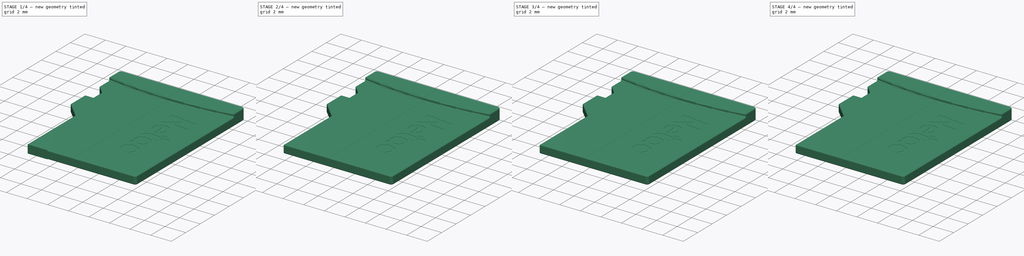
[diagram: build sequence overview — one tinted view per stage of 4, left to right]
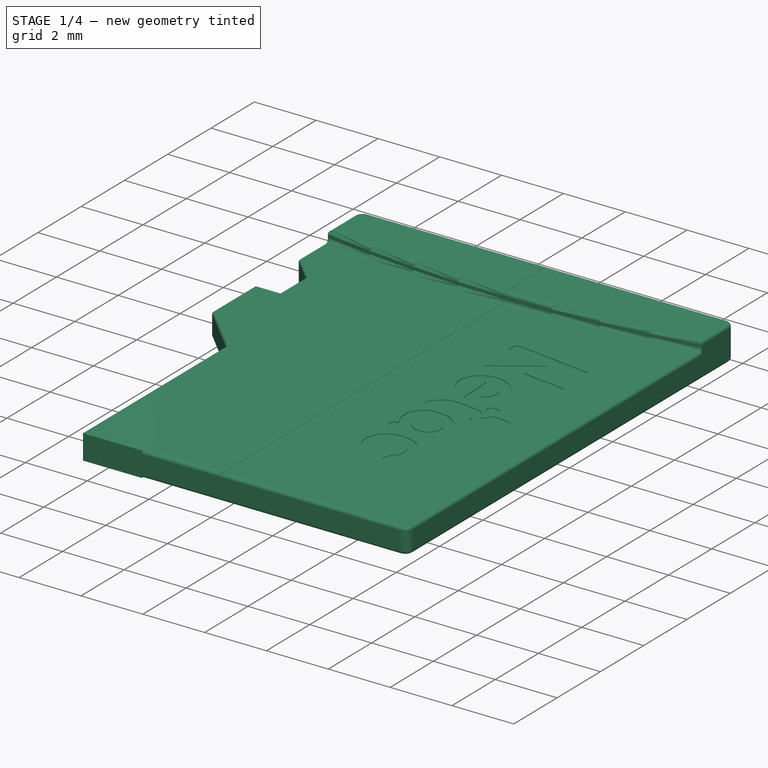
[diagram: stage 1 of 4 — iso view after this stage's code; geometry added in this stage tinted green]
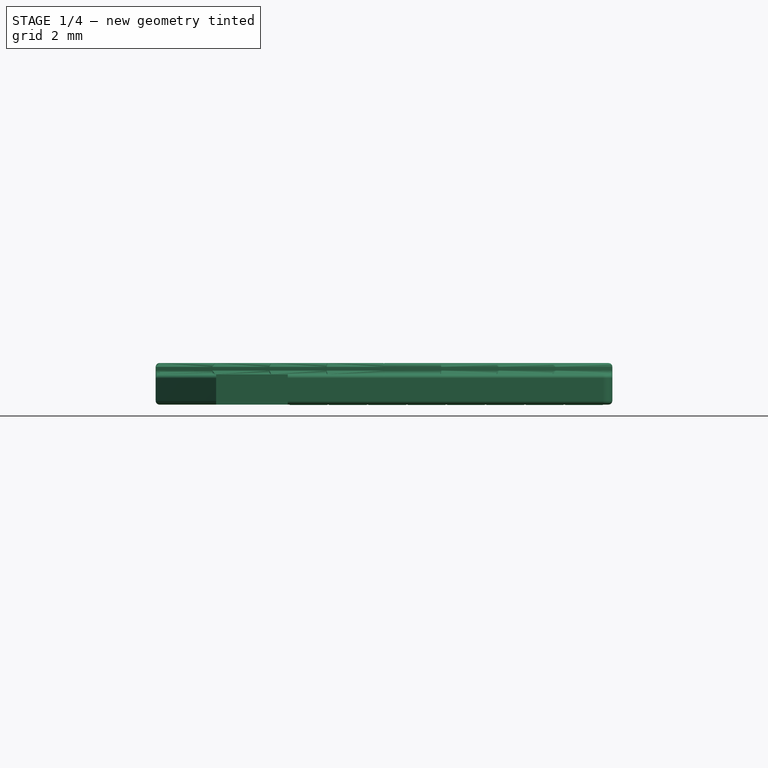
[diagram: stage 1 of 4 — front view after this stage's code; geometry added in this stage tinted green]
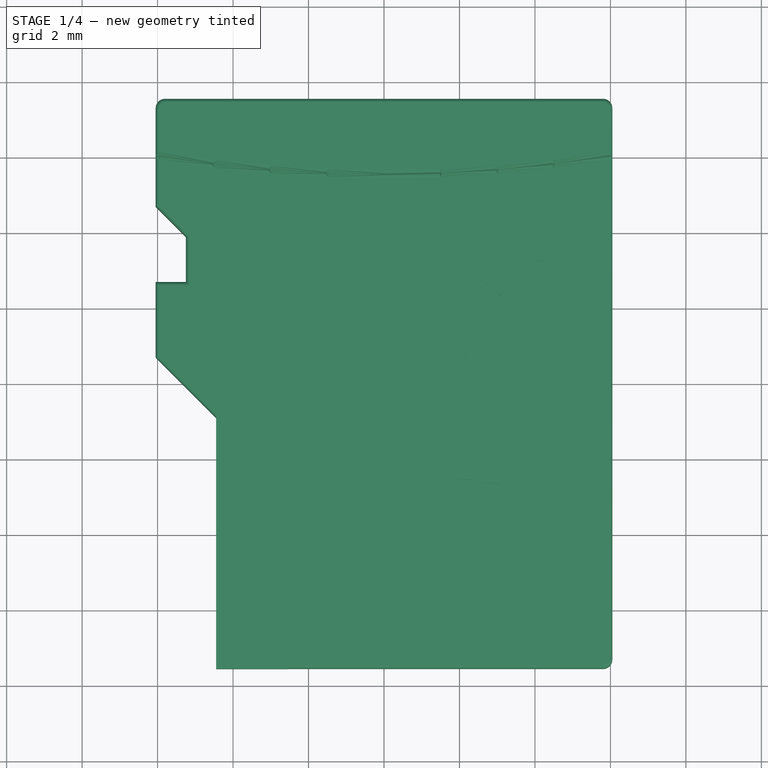
[diagram: stage 1 of 4 — top view after this stage's code; geometry added in this stage tinted green]
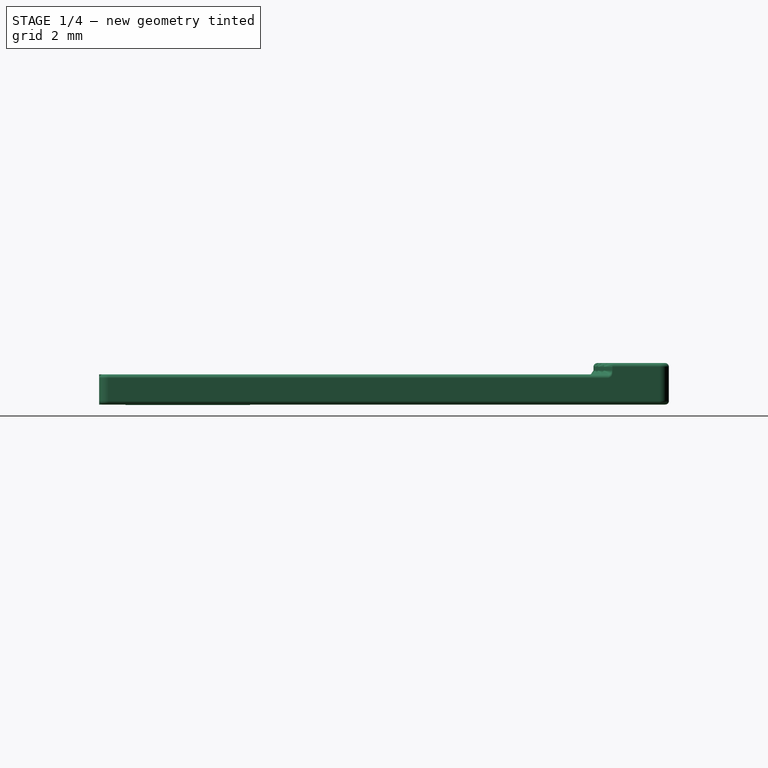
[diagram: stage 1 of 4 — right view after this stage's code; geometry added in this stage tinted green]
FCSTD DOCUMENT  (FreeCAD 0.19R)
Label: Netac 8GB
License: All rights reserved
LicenseURL: http://en.wikipedia.org/wiki/All_rights_reserved
objects: PartDesign::Pad×5, Sketcher::SketchObject×4, Part::Feature×2, PartDesign::SubtractivePipe×2, PartDesign::FeatureBase×1, PartDesign::Pocket×1, PartDesign::LinearPattern×1, PartDesign::Body×1
note: 25 computed .brp shape members not serialized (recipe doc carries the construction recipe); baked Part::Feature solids carry a one-line shape summary decoded from their .brp

FEATURE [Part::Feature] Compound001
  Placement = pos=(54.15,-1.2e-14,0) rot=(0,0,1;4.71239rad)
  shape: bbox 18.89 x 57.41 x 2e-07 mm, 19 faces, 0 solids (baked)
FEATURE [Part::Feature] Cut001
  shape: bbox 12.22 x 15.14 x 1.112 mm, 199 faces (baked)
FEATURE [PartDesign::FeatureBase] BaseFeature
  BaseFeature = -> Cut001
FEATURE [Sketcher::SketchObject] Sketch
  ExternalGeometry = -> [BaseFeature]
  FullyConstrained = true
  MapMode = 5
  Placement = pos=(0,0,0.8) rot=(0,0,1;0rad)
  Support = -> [BaseFeature]
  sketch-geometry (4):
    g0: LineSegment StartX=-4.45 StartY=-0.758579 StartZ=0 EndX=-2.55 EndY=-0.758579 EndZ=0
    g1: LineSegment StartX=-2.55 StartY=-0.758579 StartZ=0 EndX=-2.55 EndY=-7.55 EndZ=0
    g2: LineSegment StartX=-2.55 StartY=-7.55 StartZ=0 EndX=-4.45 EndY=-7.55 EndZ=0
    g3: LineSegment StartX=-4.45 StartY=-7.55 StartZ=0 EndX=-4.45 EndY=-0.758579 EndZ=0
  constraints (11):
    c: Coincident(g0,g1)
    c: Coincident(g1,g2)
    c: Coincident(g2,g3)
    c: Coincident(g3,g0)
    c: Horizontal(g0)
    c: Horizontal(g2)
    c: Vertical(g1)
    c: Vertical(g3)
    c: PointOnObject(g0,g-4)
    c: Coincident(g-3,g1)
    c: Distance(g-6,g3) = 1.6
FEATURE [PartDesign::Pad] Pad
  BaseFeature = -> BaseFeature
  Direction = (1,1,1)
  Length = 10
  Length2 = 100
  Profile = -> Sketch
  Type = 3
  UpToFace = -> BaseFeature [Face15]
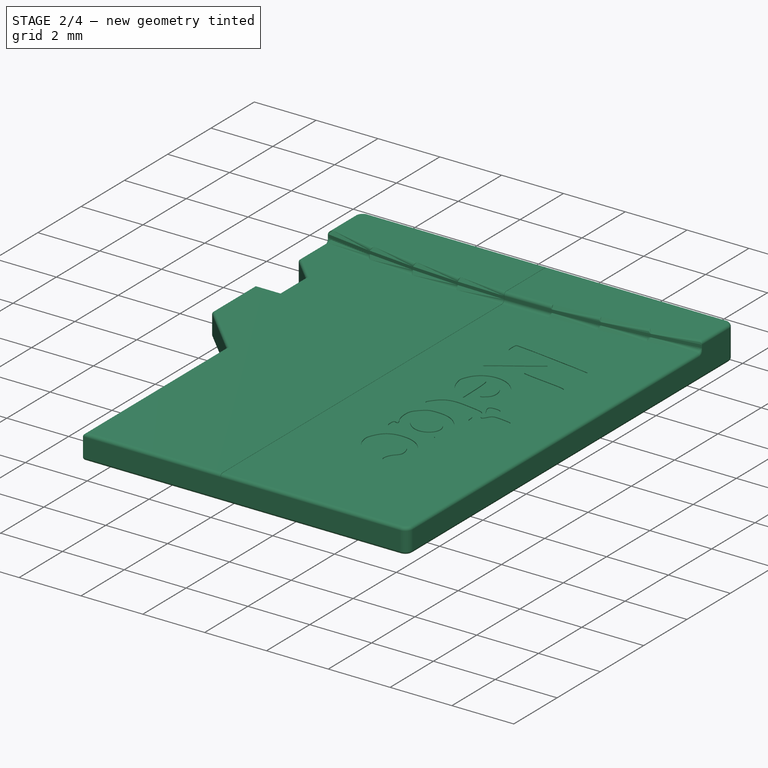
[diagram: stage 2 of 4 — iso view after this stage's code; geometry added in this stage tinted green]
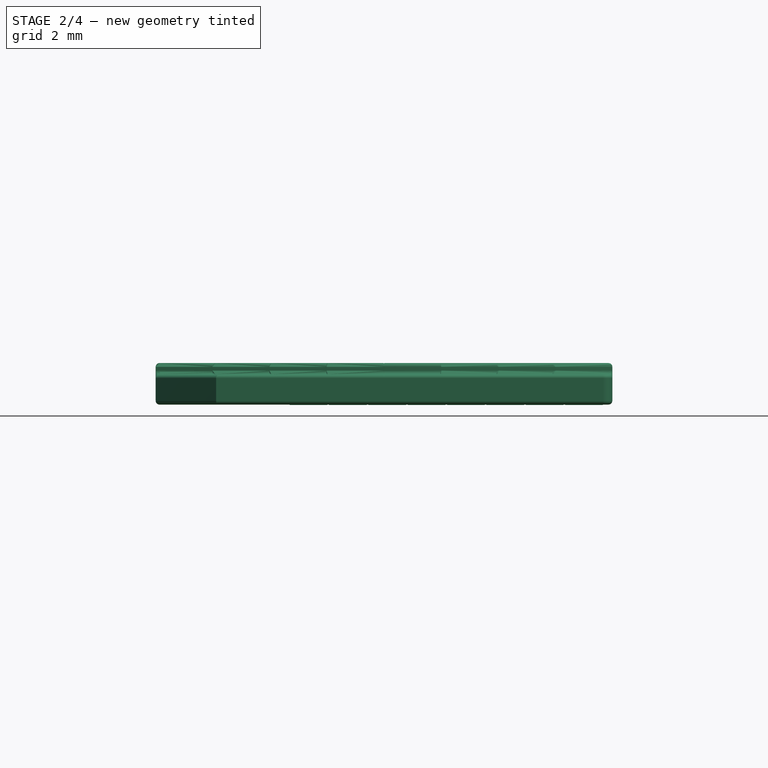
[diagram: stage 2 of 4 — front view after this stage's code; geometry added in this stage tinted green]
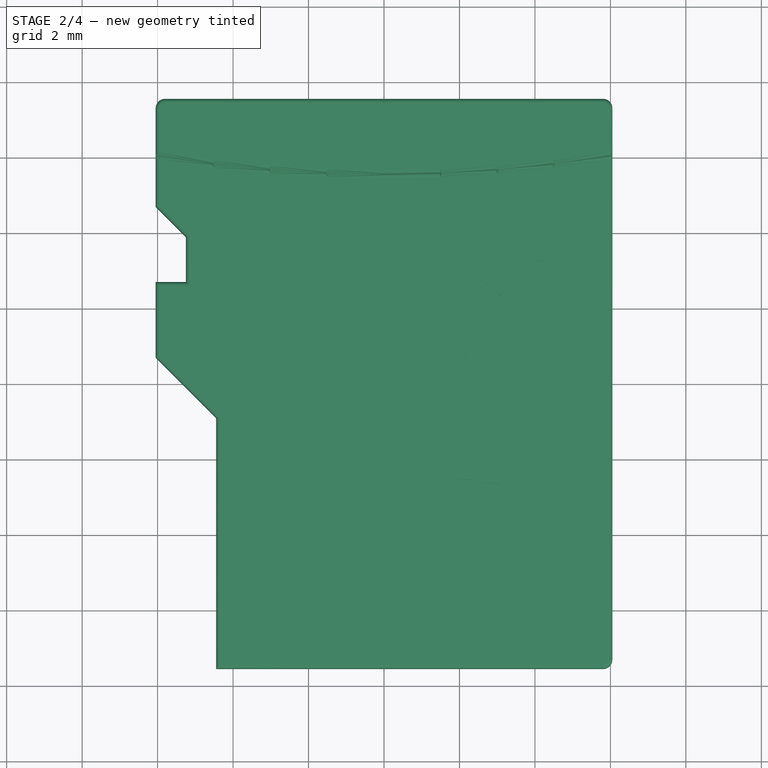
[diagram: stage 2 of 4 — top view after this stage's code; geometry added in this stage tinted green]
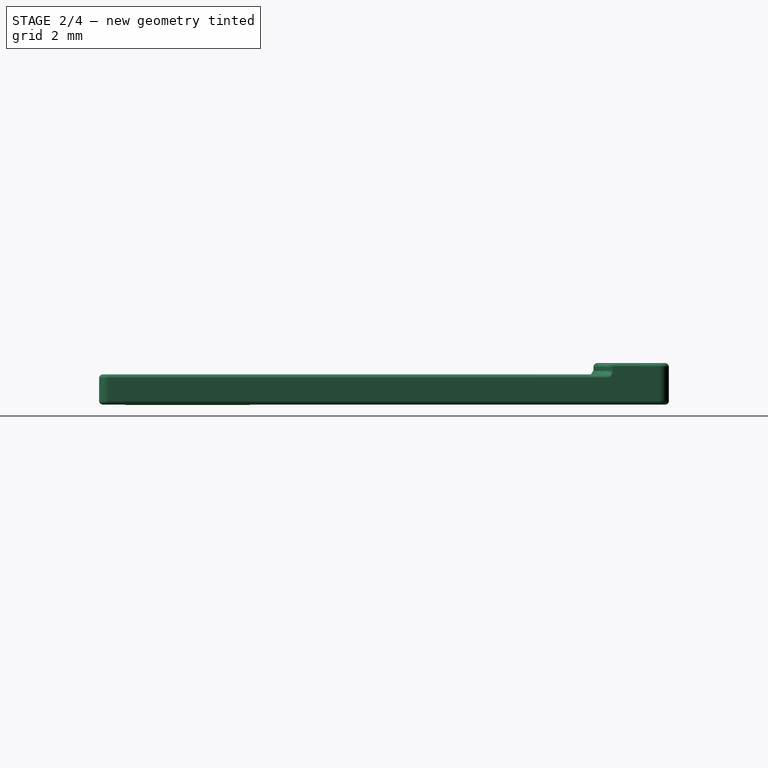
[diagram: stage 2 of 4 — right view after this stage's code; geometry added in this stage tinted green]
FEATURE [Sketcher::SketchObject] Sketch001
  ExternalGeometry = -> [Pad]
  FullyConstrained = true
  MapMode = 5
  Placement = pos=(0,0,0.8) rot=(0,0,1;0rad)
  Support = -> [Pad]
  sketch-geometry (4):
    g0: LineSegment StartX=-4.45 StartY=-0.9 StartZ=0 EndX=-4.45 EndY=-0.758579 EndZ=0
    g1: LineSegment StartX=-4.45 StartY=-0.758579 StartZ=0 EndX=-5.95 EndY=0.741421 EndZ=0
    g2: LineSegment StartX=-5.95 StartY=0.741421 StartZ=0 EndX=-6.05 EndY=0.7 EndZ=0
    g3: LineSegment StartX=-6.05 StartY=0.7 StartZ=0 EndX=-4.45 EndY=-0.9 EndZ=0
  constraints (9):
    c: Coincident(g0,g-4)
    c: Coincident(g0,g1)
    c: PointOnObject(g1,g-3)
    c: Coincident(g1,g2)
    c: Coincident(g2,g-3)
    c: Coincident(g2,g3)
    c: Coincident(g3,g0)
    c: Parallel(g3,g1)
    c: Coincident(g0,g-5)
FEATURE [PartDesign::Pad] Pad001
  BaseFeature = -> Pad
  Direction = (1,1,1)
  Length = 10
  Length2 = 100
  Profile = -> Sketch001
  Refine = true
  Type = 3
  UpToFace = -> Pad [Face3]
FEATURE [PartDesign::SubtractivePipe] SubtractivePipe
  AuxilleryCurvelinear = true
  AuxillerySpineTangent = false
  BaseFeature = -> Pad001
  Binormal = (0,0,0)
  Mode = 0
  Profile = -> Pad001 [Face45]
  Refine = true
  Spine = -> Pad001 [Edge466,Edge1,Edge458]
  SpineTangent = false
  Transformation = 0
  Transition = 2
FEATURE [PartDesign::SubtractivePipe] SubtractivePipe001
  AuxilleryCurvelinear = true
  AuxillerySpineTangent = false
  BaseFeature = -> SubtractivePipe
  Binormal = (0,0,0)
  Mode = 0
  Profile = -> SubtractivePipe [Face23]
  Spine = -> SubtractivePipe [Edge12,Edge3,Edge9]
  SpineTangent = false
  Transformation = 0
  Transition = 2
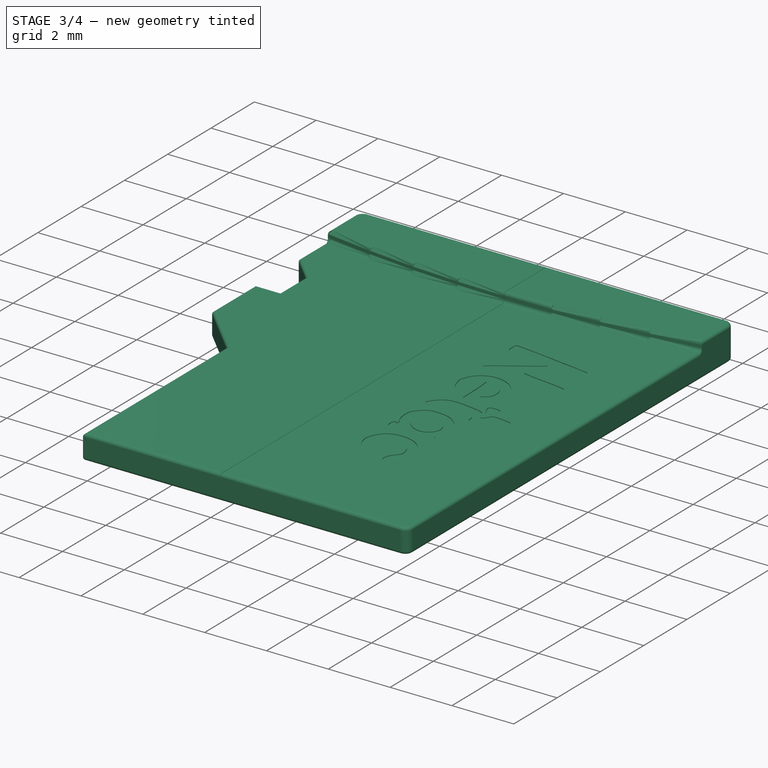
[diagram: stage 3 of 4 — iso view after this stage's code; geometry added in this stage tinted green]
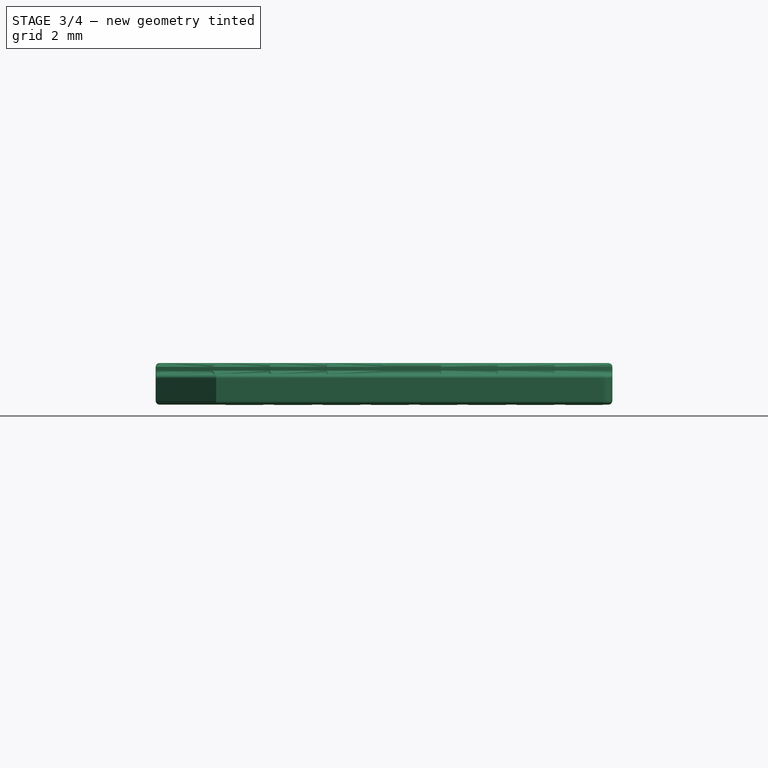
[diagram: stage 3 of 4 — front view after this stage's code; geometry added in this stage tinted green]
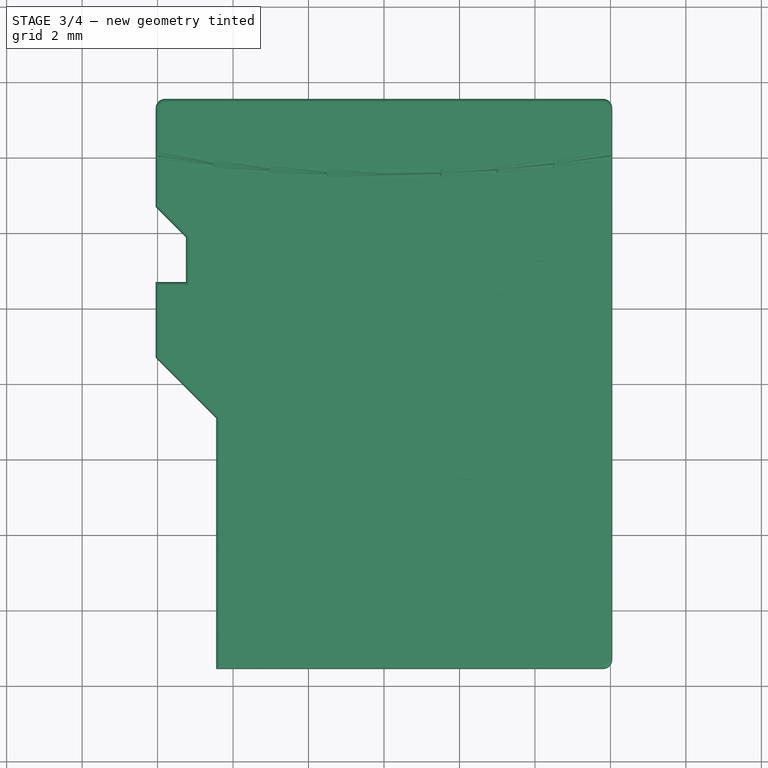
[diagram: stage 3 of 4 — top view after this stage's code; geometry added in this stage tinted green]
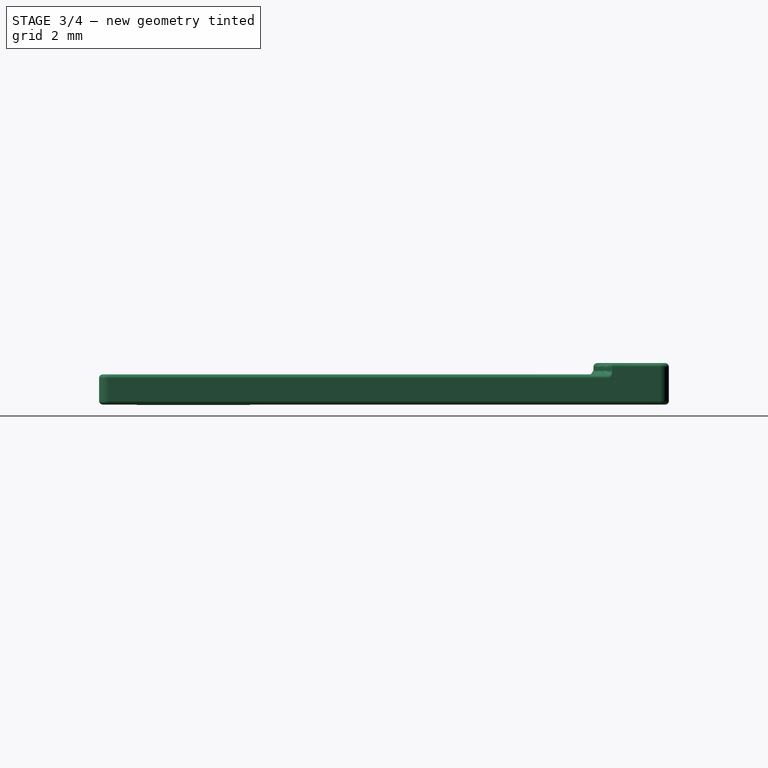
[diagram: stage 3 of 4 — right view after this stage's code; geometry added in this stage tinted green]
FEATURE [Sketcher::SketchObject] Sketch002
  ExternalGeometry = -> [SubtractivePipe001]
  FullyConstrained = true
  MapMode = 5
  Placement = pos=(0,0,0) rot=(1,0,0;3.14159rad)
  Support = -> [SubtractivePipe001]
  sketch-geometry (4):
    g0: LineSegment StartX=-2.5 StartY=3.55 StartZ=0 EndX=5.8 EndY=3.55 EndZ=0
    g1: LineSegment StartX=5.8 StartY=3.55 StartZ=0 EndX=5.8 EndY=6.85 EndZ=0
    g2: LineSegment StartX=5.8 StartY=6.85 StartZ=0 EndX=-2.5 EndY=6.85 EndZ=0
    g3: LineSegment StartX=-2.5 StartY=6.85 StartZ=0 EndX=-2.5 EndY=3.55 EndZ=0
  constraints (10):
    c: Coincident(g0,g1)
    c: Coincident(g1,g2)
    c: Coincident(g2,g3)
    c: Coincident(g3,g0)
    c: Horizontal(g2)
    c: Vertical(g1)
    c: Vertical(g3)
    c: Coincident(g0,g-4)
    c: PointOnObject(g-3,g2)
    c: Coincident(g0,g-5)
FEATURE [PartDesign::Pocket] Pocket
  BaseFeature = -> SubtractivePipe001
  Length = 5
  Length2 = 100
  Profile = -> Sketch002
  Reversed = true
  Type = 0
FEATURE [Sketcher::SketchObject] Sketch003
  ExternalGeometry = -> [Pocket]
  FullyConstrained = true
  MapMode = 5
  Placement = pos=(0,0,0) rot=(1,0,0;3.14159rad)
  Support = -> [Pocket]
  sketch-geometry (4):
    g0: LineSegment StartX=5.8 StartY=6.55 StartZ=0 EndX=4.8 EndY=6.55 EndZ=0
    g1: LineSegment StartX=4.8 StartY=6.55 StartZ=0 EndX=4.8 EndY=3.55 EndZ=0
    g2: LineSegment StartX=4.8 StartY=3.55 StartZ=0 EndX=5.8 EndY=3.55 EndZ=0
    g3: LineSegment StartX=5.8 StartY=3.55 StartZ=0 EndX=5.8 EndY=6.55 EndZ=0
  constraints (10):
    c: Coincident(g0,g1)
    c: Coincident(g1,g2)
    c: Coincident(g2,g3)
    c: Coincident(g3,g0)
    c: Horizontal(g0)
    c: Horizontal(g2)
    c: Vertical(g1)
    c: Vertical(g3)
    c: Coincident(g0,g-3)
    c: Coincident(g1,g-4)
FEATURE [PartDesign::Pad] Pad002
  BaseFeature = -> Pocket
  Direction = (1,1,1)
  Length = 0.01
  Length2 = 100
  Profile = -> Sketch003
  Refine = true
  Type = 0
FEATURE [PartDesign::LinearPattern] LinearPattern
  BaseFeature = -> Pad002
  Direction = -> X_Axis
  Length = 9
  Occurrences = 8
  Originals = -> [Pad002]
  Reversed = true
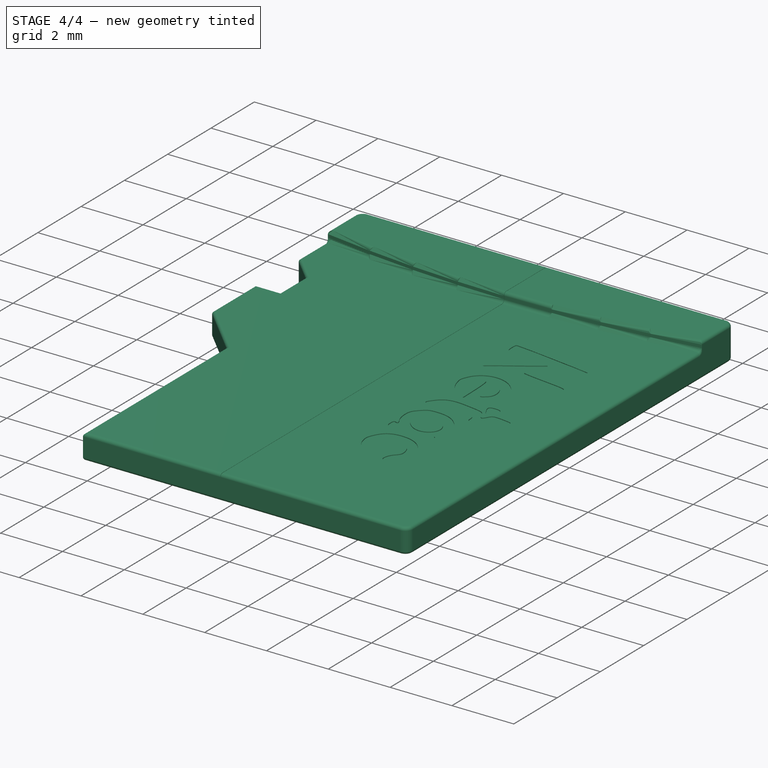
[diagram: stage 4 of 4 — iso view after this stage's code; geometry added in this stage tinted green]
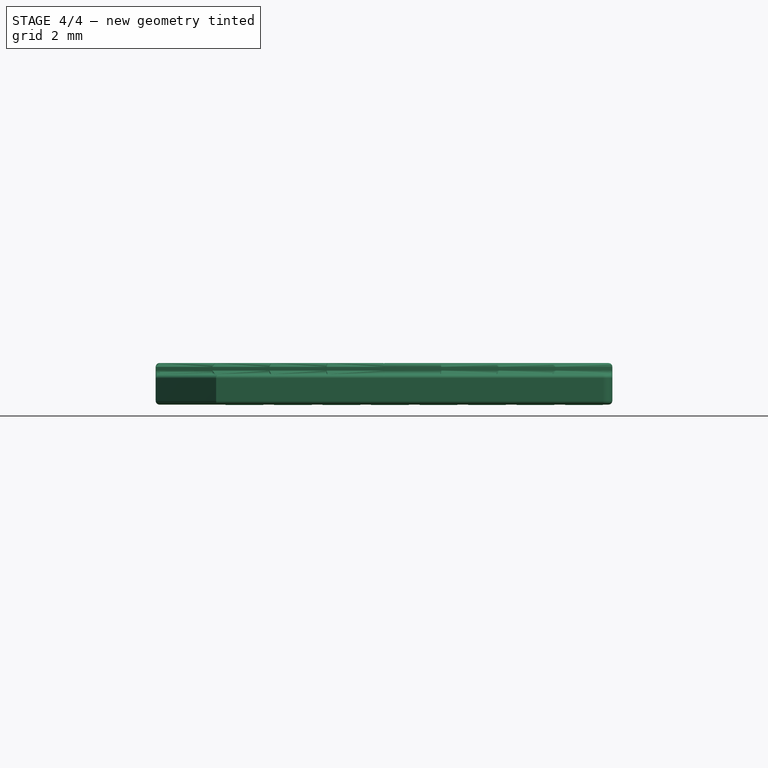
[diagram: stage 4 of 4 — front view after this stage's code; geometry added in this stage tinted green]
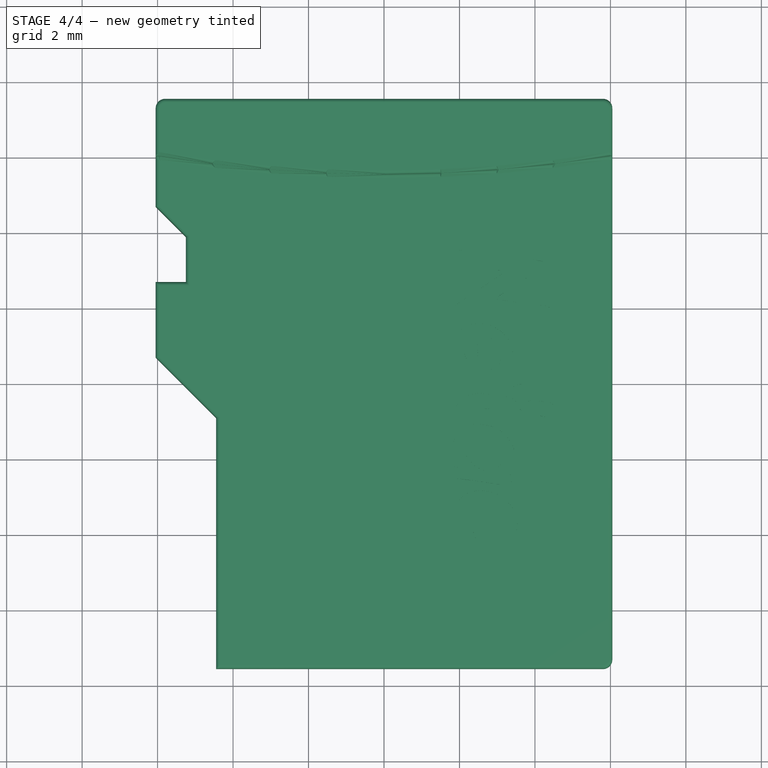
[diagram: stage 4 of 4 — top view after this stage's code; geometry added in this stage tinted green]
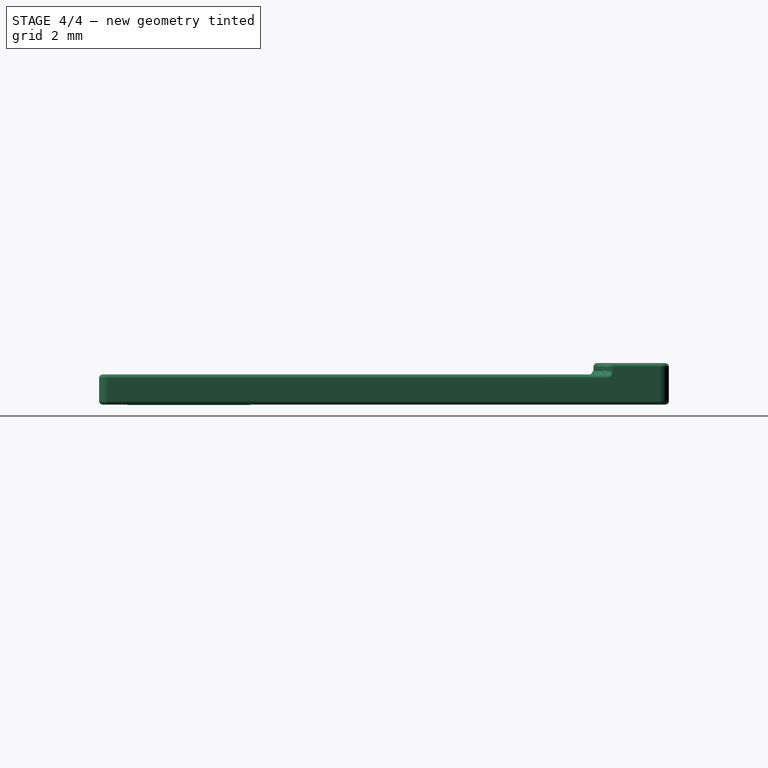
[diagram: stage 4 of 4 — right view after this stage's code; geometry added in this stage tinted green]
FEATURE [PartDesign::Pad] Pad003
  BaseFeature = -> LinearPattern
  Direction = (1,1,1)
  Length = 0.25
  Length2 = 100
  Profile = -> LinearPattern [Face47]
  Type = 0
FEATURE [PartDesign::Pad] Pad004
  BaseFeature = -> Pad003
  Direction = (1,1,1)
  Length = 0.25
  Length2 = 100
  Profile = -> Pad003 [Face45]
  Refine = true
  Type = 0
FEATURE [PartDesign::Body] Body
  BaseFeature = -> Cut001
  Group = -> [BaseFeature,Sketch,Pad,Sketch001,Pad001,SubtractivePipe,SubtractivePipe001,Sketch002,Pocket,Sketch003,Pad002,LinearPattern,Pad003,Pad004]
  Origin = -> Origin
  Tip = -> Pad004
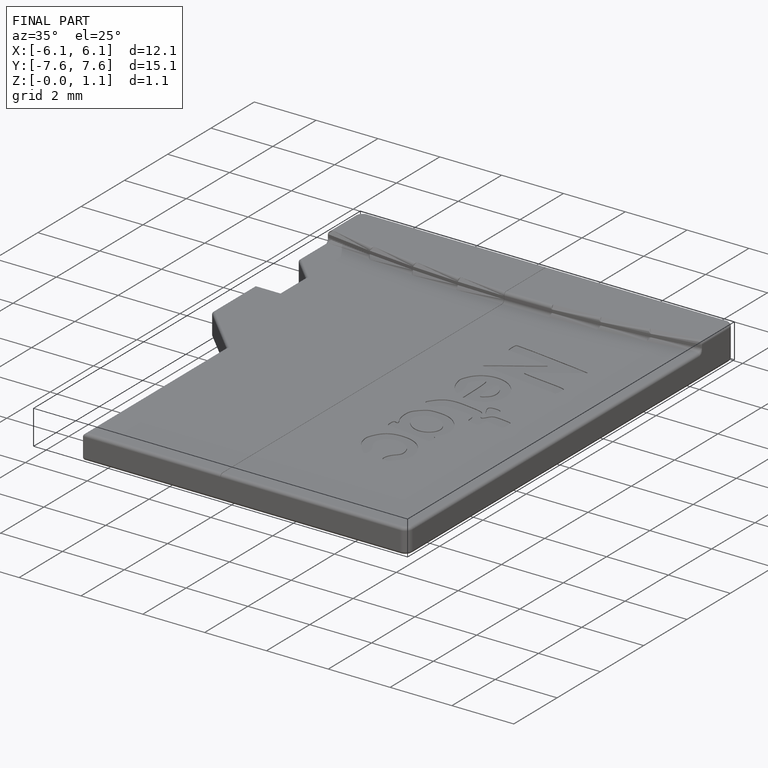
[diagram: finished part — iso view with bounding-box wireframe]
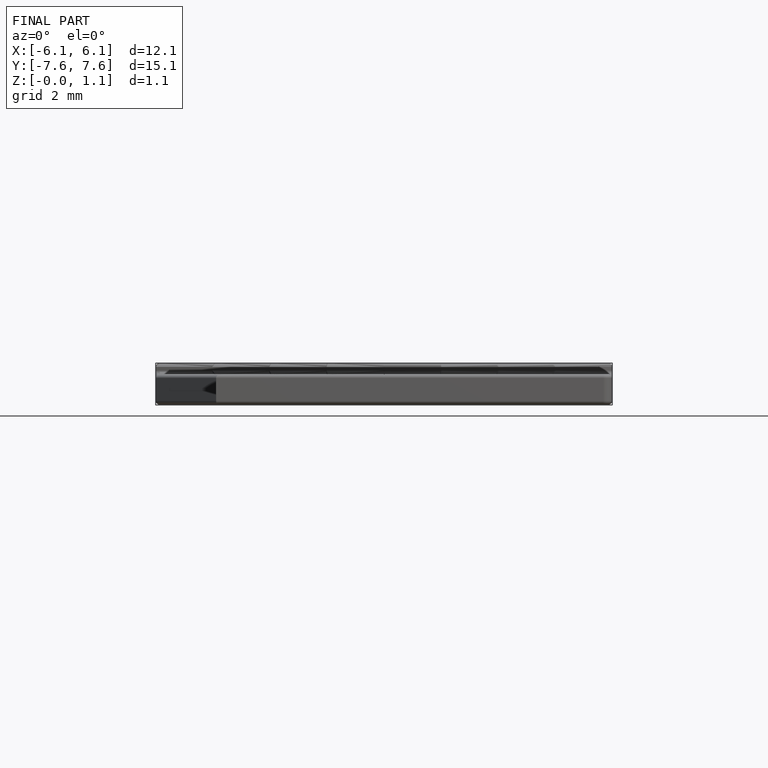
[diagram: finished part — front view with bounding-box wireframe]
